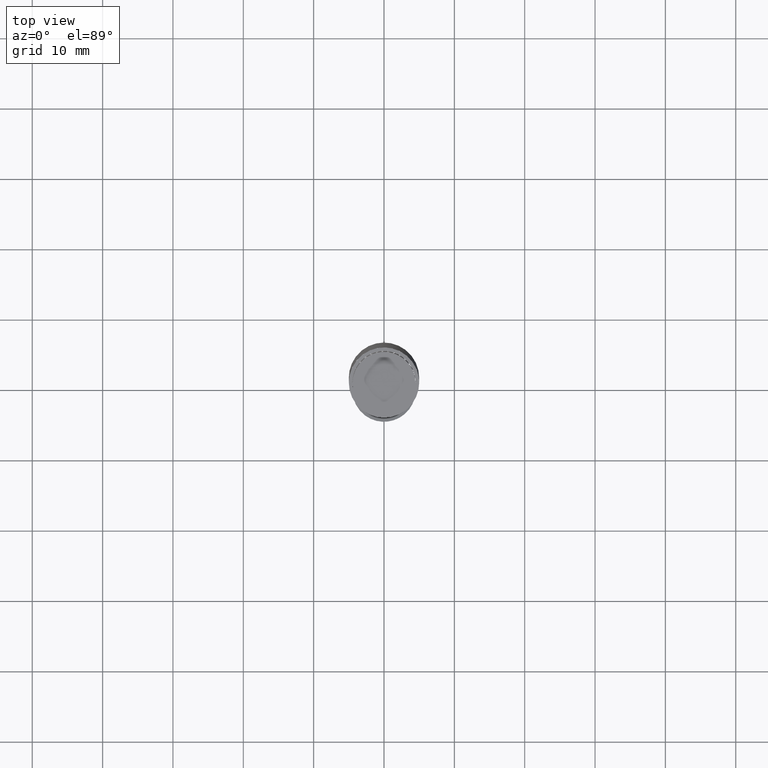
[diagram: clean part render]
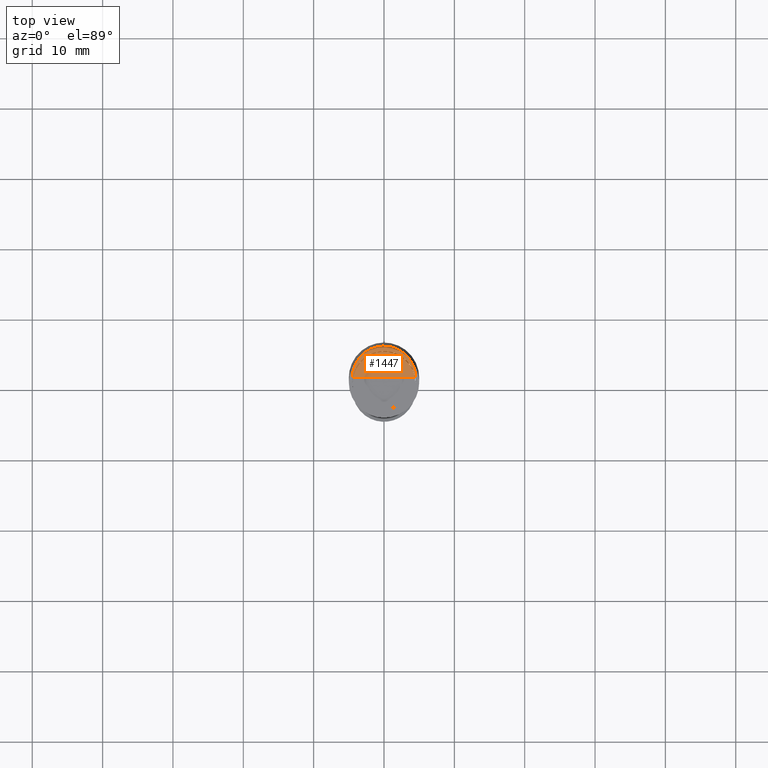
[diagram: same view with one face highlighted and labeled with its STEP entity id]
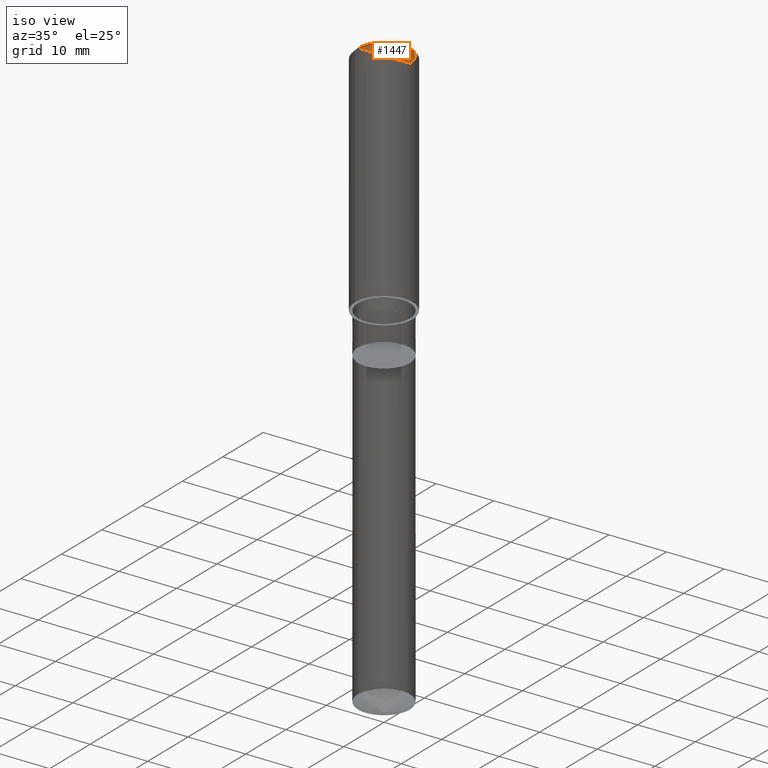
[diagram: same view with one face highlighted and labeled with its STEP entity id]
A machine part, top view. The second image highlights one B-rep face of the part: STEP entity #1447.
A second angle (iso view) of the same face is appended — the face is thin or edge-on in the first view.
In plain terms, the highlighted face is a freeform B-spline surface patch.
Its self-contained STEP definition (entity closure, byte-faithful):
#1182=CARTESIAN_POINT('',(4.5,0.0,40.0));
#1183=CARTESIAN_POINT('',(4.5,4.5,40.0));
#1184=CARTESIAN_POINT('',(0.0,4.5,40.0));
#1185=CARTESIAN_POINT('',(-4.5,4.5,40.0));
#1186=CARTESIAN_POINT('',(-4.5,0.0,40.0));
#1187=CARTESIAN_POINT('',(0.0,0.0,40.0));
#1432=(
BOUNDED_SURFACE()
B_SPLINE_SURFACE(1,2,(
(#1182,#1183,#1184,#1185,#1186),
(#1187,#1187,#1187,#1187,#1187)
), .UNSPECIFIED.,.F.,.F.,.F.)
B_SPLINE_SURFACE_WITH_KNOTS((2,2),(3,2,3),(
0.0,1.0),(
0.0,0.5,1.0), .UNSPECIFIED.)
GEOMETRIC_REPRESENTATION_ITEM()
RATIONAL_B_SPLINE_SURFACE(((1.0,0.707106781187,1.0,0.707106781187,1.0),
(1.0,0.707106781187,1.0,0.707106781187,1.0)
))
REPRESENTATION_ITEM('')
SURFACE()
);
#1433=(
BOUNDED_CURVE()
B_SPLINE_CURVE(2,(#1186,#1185,#1184,#1183,#1182),.UNSPECIFIED.,.F.,.F.)
B_SPLINE_CURVE_WITH_KNOTS((3,2,3),
(0.0,0.5,1.0),.UNSPECIFIED.)
CURVE()
GEOMETRIC_REPRESENTATION_ITEM()
RATIONAL_B_SPLINE_CURVE((1.0,0.707106781187,1.0,0.707106781187,1.0))
REPRESENTATION_ITEM('')
);
#1434=(
BOUNDED_CURVE()
B_SPLINE_CURVE(1,(#1182,#1187),.UNSPECIFIED.,.F.,.F.)
B_SPLINE_CURVE_WITH_KNOTS((2,2),
(0.0,1.0),.UNSPECIFIED.)
CURVE()
GEOMETRIC_REPRESENTATION_ITEM()
RATIONAL_B_SPLINE_CURVE((1.0,1.0))
REPRESENTATION_ITEM('')
);
#1435=(
BOUNDED_CURVE()
B_SPLINE_CURVE(1,(#1187,#1186),.UNSPECIFIED.,.F.,.F.)
B_SPLINE_CURVE_WITH_KNOTS((2,2),
(0.0,1.0),.UNSPECIFIED.)
CURVE()
GEOMETRIC_REPRESENTATION_ITEM()
RATIONAL_B_SPLINE_CURVE((1.0,1.0))
REPRESENTATION_ITEM('')
);
#1436=VERTEX_POINT('',#1182);
#1437=VERTEX_POINT('',#1186);
#1438=VERTEX_POINT('',#1187);
#1439=EDGE_CURVE('',#1437,#1436,#1433,.T.);
#1440=EDGE_CURVE('',#1436,#1438,#1434,.T.);
#1441=EDGE_CURVE('',#1438,#1437,#1435,.T.);
#1442=ORIENTED_EDGE('',*,*,#1439,.T.);
#1443=ORIENTED_EDGE('',*,*,#1440,.T.);
#1444=ORIENTED_EDGE('',*,*,#1441,.T.);
#1445=EDGE_LOOP('',(#1442,#1443,#1444));
#1446=FACE_OUTER_BOUND('',#1445,.T.);
#1447=ADVANCED_FACE('',(#1446),#1432,.T.);